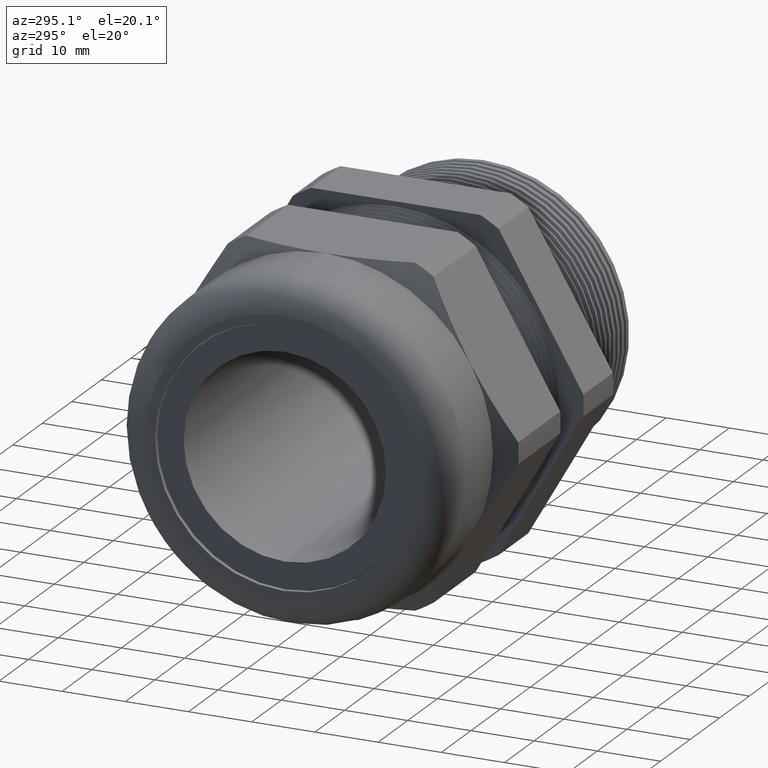
[diagram: clean part render]
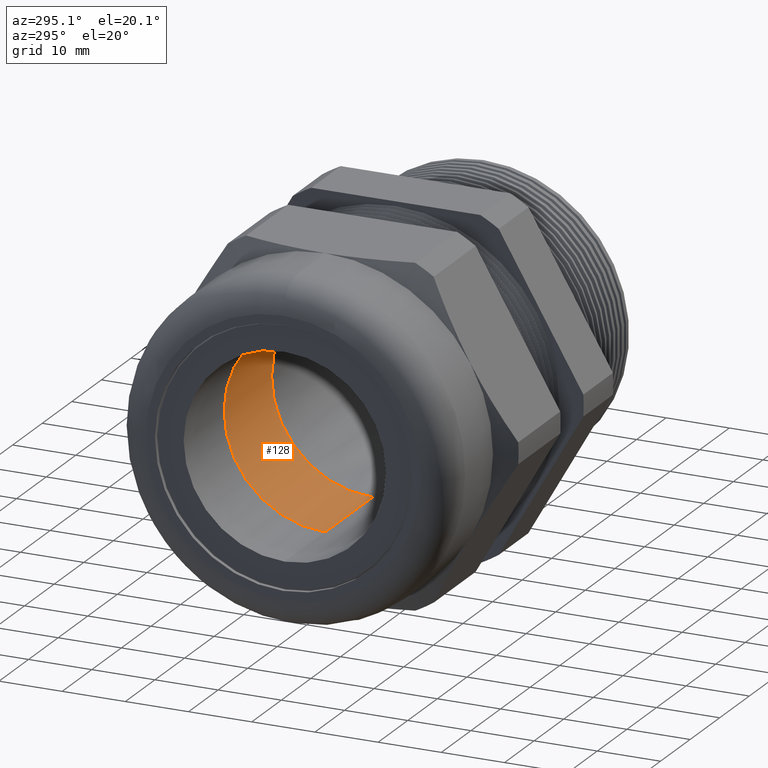
[diagram: same view with one face highlighted and labeled with its STEP entity id]
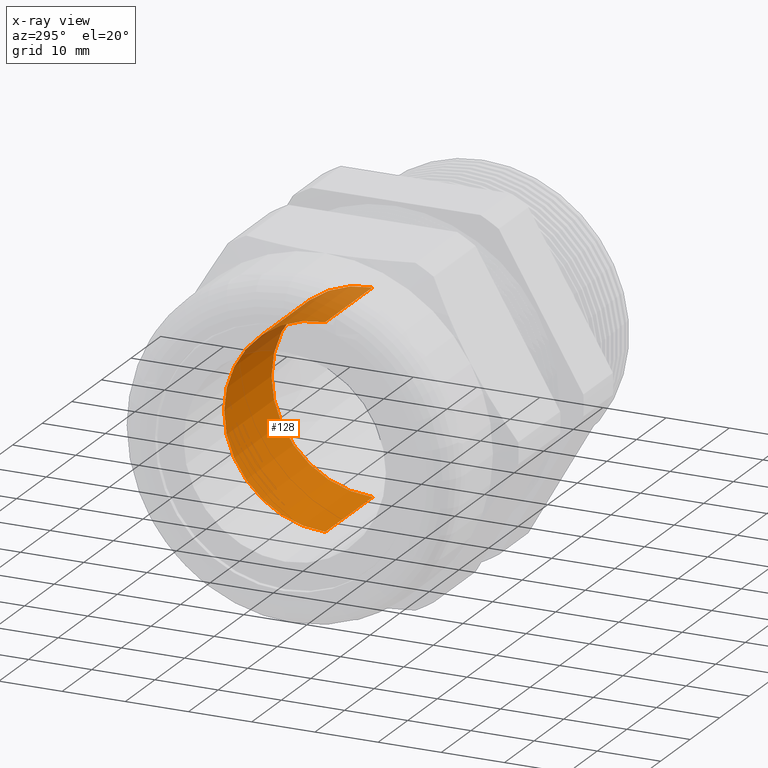
[diagram: x-ray of the same camera — body ghosted, the highlighted face saturated]
A machine part, auxiliary view. The second image highlights one B-rep face of the part: STEP entity #128.
The next image is the same camera in x-ray: the body ghosted, the highlighted face saturated — about 16% of this face is hidden behind the body in this view.
In plain terms, the highlighted cylindrical surface (partial cylindrical patch) has radius 16.002 mm, axis along (-1, 0, 0).
Its self-contained STEP definition (entity closure, byte-faithful):
#128 = ADVANCED_FACE ( 'NONE', ( #1654 ), #1653, .F. ) ;
#129 = EDGE_LOOP ( 'NONE', ( #130, #131, #133, #134 ) ) ;
#130 = ORIENTED_EDGE ( 'NONE', *, *, #963, .F. ) ;
#131 = ORIENTED_EDGE ( 'NONE', *, *, #132, .F. ) ;
#132 = EDGE_CURVE ( 'NONE', #869, #912, #1647, .T. ) ;
#133 = ORIENTED_EDGE ( 'NONE', *, *, #874, .T. ) ;
#134 = ORIENTED_EDGE ( 'NONE', *, *, #147, .T. ) ;
#147 = EDGE_CURVE ( 'NONE', #966, #964, #1684, .T. ) ;
#869 = VERTEX_POINT ( 'NONE', #2922 ) ;
#874 = EDGE_CURVE ( 'NONE', #869, #966, #2912, .T. ) ;
#912 = VERTEX_POINT ( 'NONE', #3024 ) ;
#963 = EDGE_CURVE ( 'NONE', #912, #964, #3116, .T. ) ;
#964 = VERTEX_POINT ( 'NONE', #3107 ) ;
#966 = VERTEX_POINT ( 'NONE', #3106 ) ;
#1644 = DIRECTION ( 'NONE',  ( 0.0000000000000000000, 0.0000000000000000000, 1.000000000000000000 ) ) ;
#1645 = DIRECTION ( 'NONE',  ( -1.000000000000000000, 0.0000000000000000000, 0.0000000000000000000 ) ) ;
#1646 = AXIS2_PLACEMENT_3D ( 'NONE', #1652, #1645, #1644 ) ;
#1647 = CIRCLE ( 'NONE', #1646, 0.6300000000000000000 ) ;
#1648 = DIRECTION ( 'NONE',  ( 0.0000000000000000000, 0.0000000000000000000, 1.000000000000000000 ) ) ;
#1649 = DIRECTION ( 'NONE',  ( -1.000000000000000000, 0.0000000000000000000, 0.0000000000000000000 ) ) ;
#1650 = CARTESIAN_POINT ( 'NONE',  ( -0.7238591030180623300, 0.0000000000000000000, 0.0000000000000000000 ) ) ;
#1651 = AXIS2_PLACEMENT_3D ( 'NONE', #1650, #1649, #1648 ) ;
#1652 = CARTESIAN_POINT ( 'NONE',  ( -0.7012500000000001500, 0.0000000000000000000, 0.0000000000000000000 ) ) ;
#1653 = CYLINDRICAL_SURFACE ( 'NONE', #1651, 0.6300000000000000000 ) ;
#1654 = FACE_OUTER_BOUND ( 'NONE', #129, .T. ) ;
#1680 = DIRECTION ( 'NONE',  ( 0.0000000000000000000, 0.0000000000000000000, 1.000000000000000000 ) ) ;
#1681 = DIRECTION ( 'NONE',  ( -1.000000000000000000, 0.0000000000000000000, 0.0000000000000000000 ) ) ;
#1682 = CARTESIAN_POINT ( 'NONE',  ( -1.331250000000000300, 0.0000000000000000000, 0.0000000000000000000 ) ) ;
#1683 = AXIS2_PLACEMENT_3D ( 'NONE', #1682, #1681, #1680 ) ;
#1684 = CIRCLE ( 'NONE', #1683, 0.6300000000000000000 ) ;
#2909 = DIRECTION ( 'NONE',  ( -1.000000000000000000, 0.0000000000000000000, 0.0000000000000000000 ) ) ;
#2910 = VECTOR ( 'NONE', #2909, 39.37007874015748100 ) ;
#2911 = CARTESIAN_POINT ( 'NONE',  ( -0.7238591030180623300, 0.0000000000000000000, 0.6300000000000000000 ) ) ;
#2912 = LINE ( 'NONE', #2911, #2910 ) ;
#2922 = CARTESIAN_POINT ( 'NONE',  ( -0.7012500000000001500, 0.0000000000000000000, 0.6300000000000000000 ) ) ;
#3024 = CARTESIAN_POINT ( 'NONE',  ( -0.7012500000000001500, 7.715274834628325400E-017, -0.6300000000000000000 ) ) ;
#3106 = CARTESIAN_POINT ( 'NONE',  ( -1.331250000000000300, 0.0000000000000000000, 0.6300000000000000000 ) ) ;
#3107 = CARTESIAN_POINT ( 'NONE',  ( -1.331250000000000300, 7.715274834628325400E-017, -0.6300000000000000000 ) ) ;
#3108 = DIRECTION ( 'NONE',  ( -1.000000000000000000, 0.0000000000000000000, 0.0000000000000000000 ) ) ;
#3109 = VECTOR ( 'NONE', #3108, 39.37007874015748100 ) ;
#3110 = CARTESIAN_POINT ( 'NONE',  ( -0.7238591030180623300, 7.715274834628325400E-017, -0.6300000000000000000 ) ) ;
#3116 = LINE ( 'NONE', #3110, #3109 ) ;